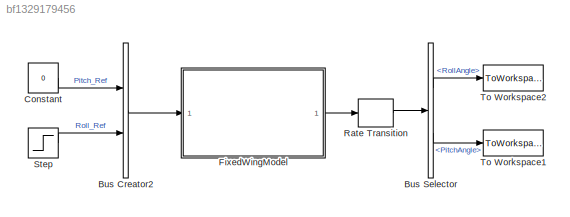
MODEL slx_bf1329179456
KIND model
BLOCK [BusCreator] Bus Creator2
  DisplayOption = bar
  InheritFromInputs = on
  Inputs = 2
  NonVirtualBus = on
  OutDataTypeStr = Bus: FixedWingControlBus2
  Ports = [2, 1]
BLOCK [BusSelector] Bus Selector
  OutputSignals = RollAngle,PitchAngle
  Ports = [1, 2]
BLOCK [Constant] Constant
  Value = 0
BLOCK [ModelReference] FixedWingModel
  ModelNameDialog = FixedWingModel
  ModelReferenceVersion = 3.52
  Ports = [1, 1]
BLOCK [RateTransition] Rate Transition
  OutPortSampleTime = 0.1
BLOCK [Step] Step
  After = 9.3
  SampleTime = 0
BLOCK [ToWorkspace] To Workspace1
  FixptAsFi = on
  MaxDataPoints = inf
  Ports = [1]
  SampleTime = -1
  SaveFormat = Timeseries
  VariableName = PitchAngle_High
BLOCK [ToWorkspace] To Workspace2
  FixptAsFi = on
  MaxDataPoints = inf
  Ports = [1]
  SampleTime = -1
  SaveFormat = Timeseries
  VariableName = RollAngle_High
LINE Bus Creator2:1 -> FixedWingModel:1
LINE Bus Selector:1 -> To Workspace2:1
LINE Bus Selector:2 -> To Workspace1:1
LINE Constant:1 -> Bus Creator2:1
LINE FixedWingModel:1 -> Rate Transition:1
LINE Rate Transition:1 -> Bus Selector:1
LINE Step:1 -> Bus Creator2:2
